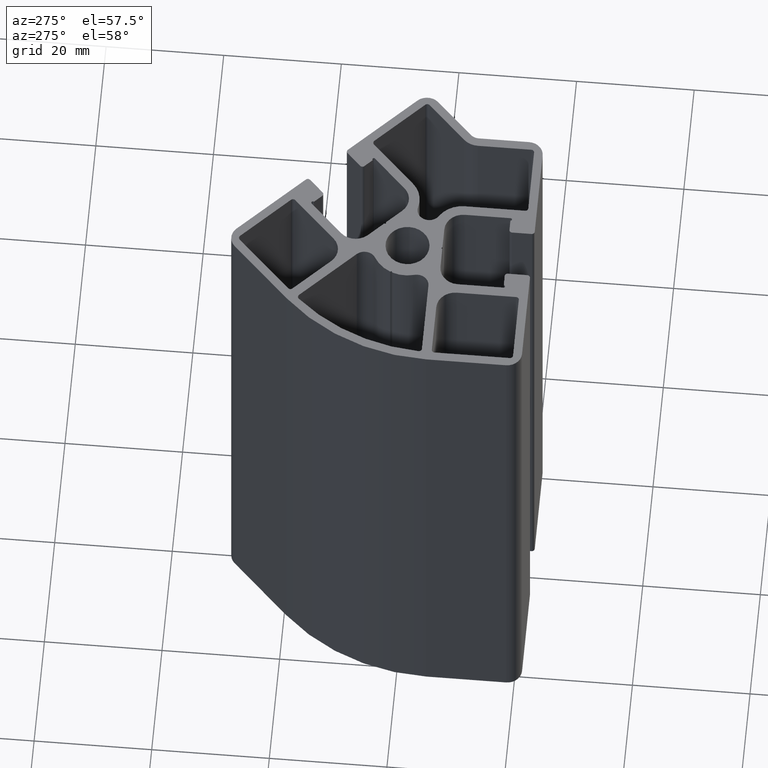
[diagram: clean part render]
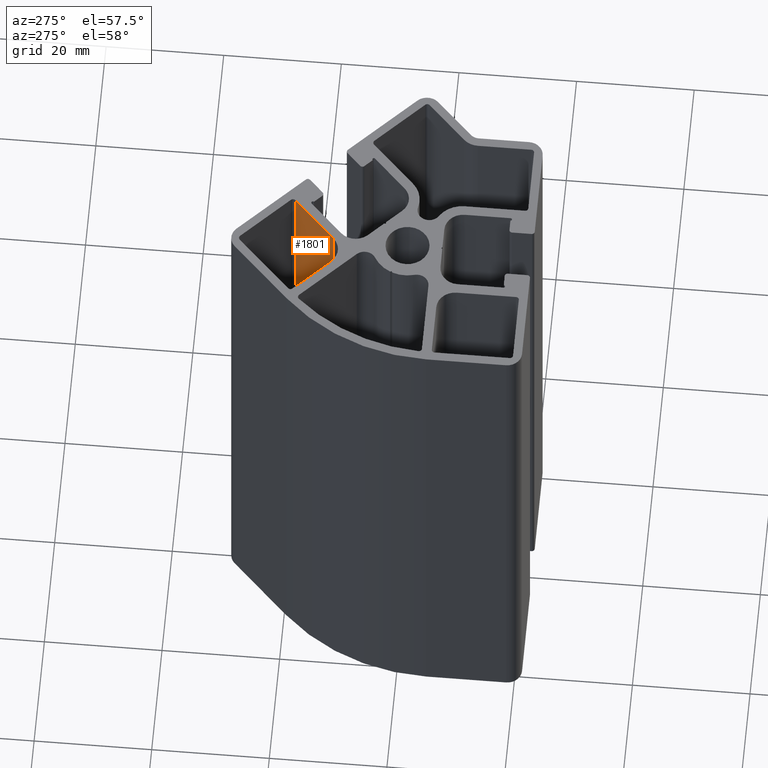
[diagram: same view with one face highlighted and labeled with its STEP entity id]
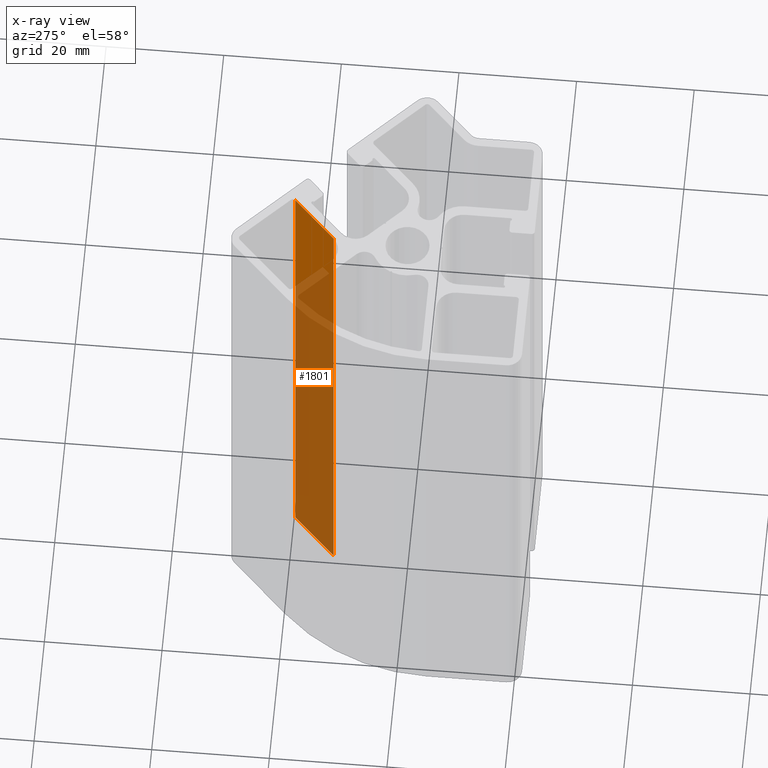
[diagram: x-ray of the same camera — body ghosted, the highlighted face saturated]
A machine part, auxiliary view. The second image highlights one B-rep face of the part: STEP entity #1801.
The next image is the same camera in x-ray: the body ghosted, the highlighted face saturated — about 81% of this face is hidden behind the body in this view.
In plain terms, the highlighted planar face has unit normal (0.7071, -0.7071, 0).
Its self-contained STEP definition (entity closure, byte-faithful):
#179=FACE_OUTER_BOUND('',#273,.T.);
#273=EDGE_LOOP('',(#1248,#1249,#1250,#1251));
#394=LINE('',#2723,#577);
#395=LINE('',#2727,#578);
#396=LINE('',#2729,#579);
#397=LINE('',#2730,#580);
#577=VECTOR('',#2161,100.);
#578=VECTOR('',#2166,10.1);
#579=VECTOR('',#2167,100.);
#580=VECTOR('',#2168,10.1);
#763=VERTEX_POINT('',#2720);
#764=VERTEX_POINT('',#2722);
#765=VERTEX_POINT('',#2726);
#766=VERTEX_POINT('',#2728);
#959=EDGE_CURVE('',#763,#764,#394,.T.);
#961=EDGE_CURVE('',#763,#765,#395,.T.);
#962=EDGE_CURVE('',#765,#766,#396,.T.);
#963=EDGE_CURVE('',#764,#766,#397,.T.);
#1248=ORIENTED_EDGE('',*,*,#961,.T.);
#1249=ORIENTED_EDGE('',*,*,#962,.T.);
#1250=ORIENTED_EDGE('',*,*,#963,.F.);
#1251=ORIENTED_EDGE('',*,*,#959,.F.);
#1745=PLANE('',#1913);
#1801=ADVANCED_FACE('',(#179),#1745,.F.);
#1913=AXIS2_PLACEMENT_3D('',#2725,#2164,#2165);
#2161=DIRECTION('',(0.,0.,-1.));
#2164=DIRECTION('center_axis',(0.707106781186546,-0.707106781186549,0.));
#2165=DIRECTION('ref_axis',(0.707106781186549,0.707106781186546,0.));
#2166=DIRECTION('',(0.707106781186549,0.707106781186546,0.));
#2167=DIRECTION('',(0.,0.,-1.));
#2168=DIRECTION('',(0.707106781186549,0.707106781186546,0.));
#2720=CARTESIAN_POINT('',(0.304055915910217,12.6077139085562,100.));
#2722=CARTESIAN_POINT('',(0.304055915910217,12.6077139085562,0.));
#2723=CARTESIAN_POINT('',(0.304055915910217,12.6077139085562,0.));
#2725=CARTESIAN_POINT('Origin',(0.304055915910215,12.6077139085562,0.));
#2726=CARTESIAN_POINT('',(7.44583440589436,19.7494923985403,100.));
#2727=CARTESIAN_POINT('',(-0.918575131367626,11.3850828612783,100.));
#2728=CARTESIAN_POINT('',(7.44583440589436,19.7494923985403,0.));
#2729=CARTESIAN_POINT('',(7.44583440589436,19.7494923985403,0.));
#2730=CARTESIAN_POINT('',(-0.918575131367626,11.3850828612783,0.));